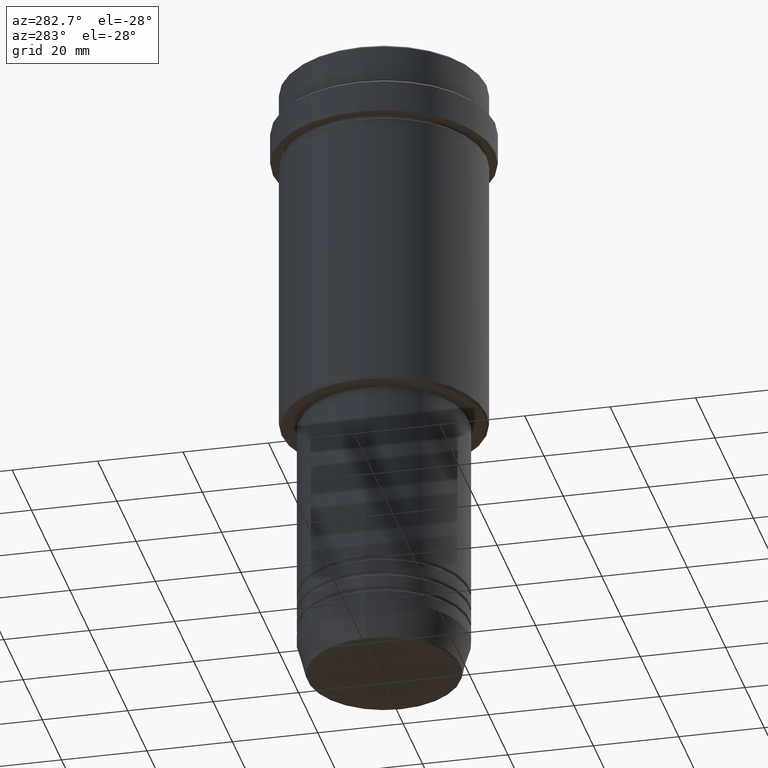
[diagram: clean part render]
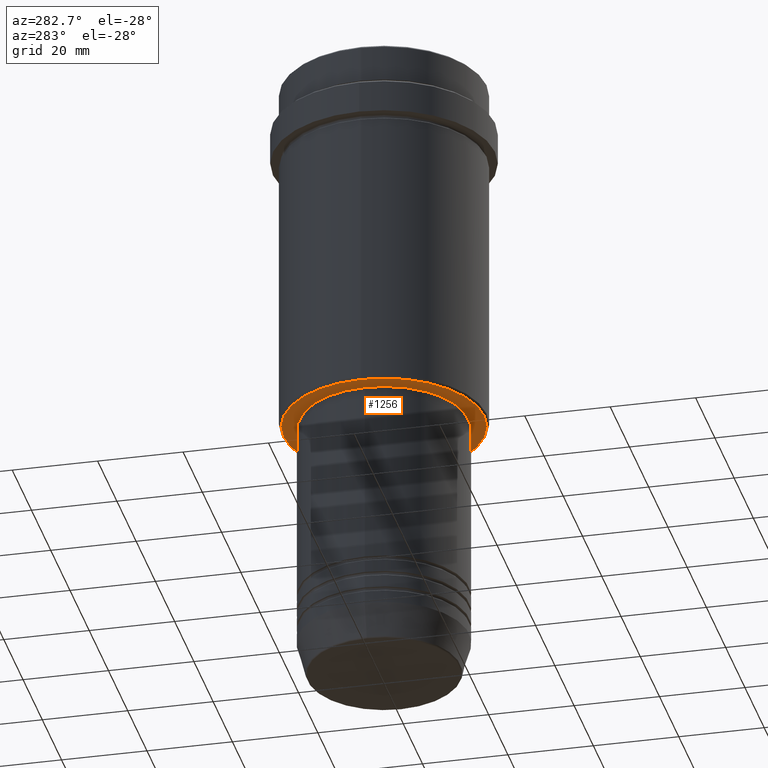
[diagram: same view with one face highlighted and labeled with its STEP entity id]
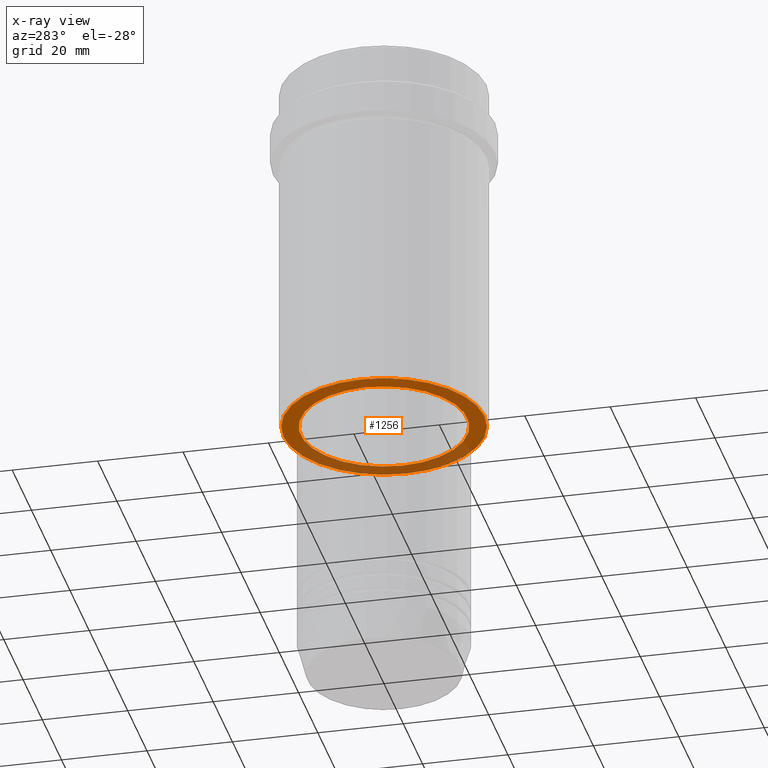
[diagram: x-ray of the same camera — body ghosted, the highlighted face saturated]
A machine part, auxiliary view. The second image highlights one B-rep face of the part: STEP entity #1256.
The next image is the same camera in x-ray: the body ghosted, the highlighted face saturated — about 35% of this face is hidden behind the body in this view.
In plain terms, the highlighted planar face has unit normal (0, 0, -1).
Its self-contained STEP definition (entity closure, byte-faithful):
#7 = VERTEX_POINT ( 'NONE', #588 ) ;
#45 = AXIS2_PLACEMENT_3D ( 'NONE', #197, #949, #826 ) ;
#86 = EDGE_CURVE ( 'NONE', #421, #1255, #278, .T. ) ;
#105 = CARTESIAN_POINT ( 'NONE',  ( 0.000000000000000000, 0.000000000000000000, -86.00000000000000000 ) ) ;
#166 = EDGE_LOOP ( 'NONE', ( #1146, #1093 ) ) ;
#179 = ORIENTED_EDGE ( 'NONE', *, *, #86, .T. ) ;
#197 = CARTESIAN_POINT ( 'NONE',  ( 0.000000000000000000, 0.000000000000000000, -86.00000000000000000 ) ) ;
#278 = CIRCLE ( 'NONE', #1136, 19.49999999999998934 ) ;
#280 = AXIS2_PLACEMENT_3D ( 'NONE', #105, #739, #1187 ) ;
#301 = CIRCLE ( 'NONE', #45, 23.49999999999996447 ) ;
#328 = CIRCLE ( 'NONE', #280, 19.49999999999998934 ) ;
#390 = CARTESIAN_POINT ( 'NONE',  ( 0.000000000000000000, 0.000000000000000000, -86.00000000000000000 ) ) ;
#409 = DIRECTION ( 'NONE',  ( 0.000000000000000000, 0.000000000000000000, -1.000000000000000000 ) ) ;
#421 = VERTEX_POINT ( 'NONE', #465 ) ;
#465 = CARTESIAN_POINT ( 'NONE',  ( -19.49999999999998934, 2.388061258337337361E-15, -86.00000000000000000 ) ) ;
#484 = DIRECTION ( 'NONE',  ( -0.000000000000000000, -0.000000000000000000, 1.000000000000000000 ) ) ;
#588 = CARTESIAN_POINT ( 'NONE',  ( -23.49999999999996447, 2.908536147974961346E-15, -86.00000000000000000 ) ) ;
#719 = CARTESIAN_POINT ( 'NONE',  ( 0.000000000000000000, 24.00000000000000000, -86.00000000000000000 ) ) ;
#721 = CARTESIAN_POINT ( 'NONE',  ( 0.000000000000000000, 0.000000000000000000, -86.00000000000000000 ) ) ;
#736 = ORIENTED_EDGE ( 'NONE', *, *, #900, .T. ) ;
#737 = DIRECTION ( 'NONE',  ( -1.000000000000000000, 0.000000000000000000, -0.000000000000000000 ) ) ;
#739 = DIRECTION ( 'NONE',  ( -0.000000000000000000, -0.000000000000000000, 1.000000000000000000 ) ) ;
#826 = DIRECTION ( 'NONE',  ( -1.000000000000000000, 0.000000000000000000, 0.000000000000000000 ) ) ;
#851 = FACE_BOUND ( 'NONE', #1122, .T. ) ;
#900 = EDGE_CURVE ( 'NONE', #1255, #421, #328, .T. ) ;
#921 = DIRECTION ( 'NONE',  ( 1.000000000000000000, 0.000000000000000000, 0.000000000000000000 ) ) ;
#949 = DIRECTION ( 'NONE',  ( 0.000000000000000000, 0.000000000000000000, -1.000000000000000000 ) ) ;
#953 = CARTESIAN_POINT ( 'NONE',  ( 19.49999999999998934, 0.000000000000000000, -86.00000000000000000 ) ) ;
#956 = VERTEX_POINT ( 'NONE', #991 ) ;
#991 = CARTESIAN_POINT ( 'NONE',  ( 23.49999999999996447, 0.000000000000000000, -86.00000000000000000 ) ) ;
#1005 = AXIS2_PLACEMENT_3D ( 'NONE', #719, #409, #737 ) ;
#1050 = AXIS2_PLACEMENT_3D ( 'NONE', #390, #1315, #1216 ) ;
#1069 = EDGE_CURVE ( 'NONE', #7, #956, #1204, .T. ) ;
#1093 = ORIENTED_EDGE ( 'NONE', *, *, #1069, .T. ) ;
#1122 = EDGE_LOOP ( 'NONE', ( #736, #179 ) ) ;
#1136 = AXIS2_PLACEMENT_3D ( 'NONE', #721, #484, #921 ) ;
#1146 = ORIENTED_EDGE ( 'NONE', *, *, #1402, .T. ) ;
#1183 = FACE_OUTER_BOUND ( 'NONE', #166, .T. ) ;
#1187 = DIRECTION ( 'NONE',  ( 1.000000000000000000, 0.000000000000000000, 0.000000000000000000 ) ) ;
#1204 = CIRCLE ( 'NONE', #1050, 23.49999999999996447 ) ;
#1216 = DIRECTION ( 'NONE',  ( -1.000000000000000000, 0.000000000000000000, 0.000000000000000000 ) ) ;
#1255 = VERTEX_POINT ( 'NONE', #953 ) ;
#1256 = ADVANCED_FACE ( 'NONE', ( #1183, #851 ), #1377, .T. ) ;
#1315 = DIRECTION ( 'NONE',  ( 0.000000000000000000, 0.000000000000000000, -1.000000000000000000 ) ) ;
#1377 = PLANE ( 'NONE',  #1005 ) ;
#1402 = EDGE_CURVE ( 'NONE', #956, #7, #301, .T. ) ;